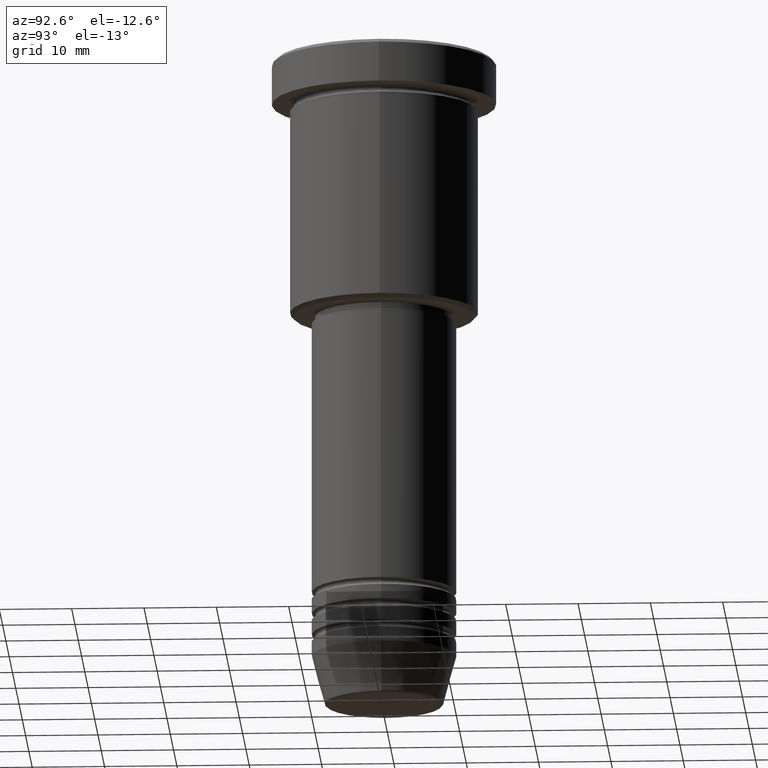
[diagram: clean part render]
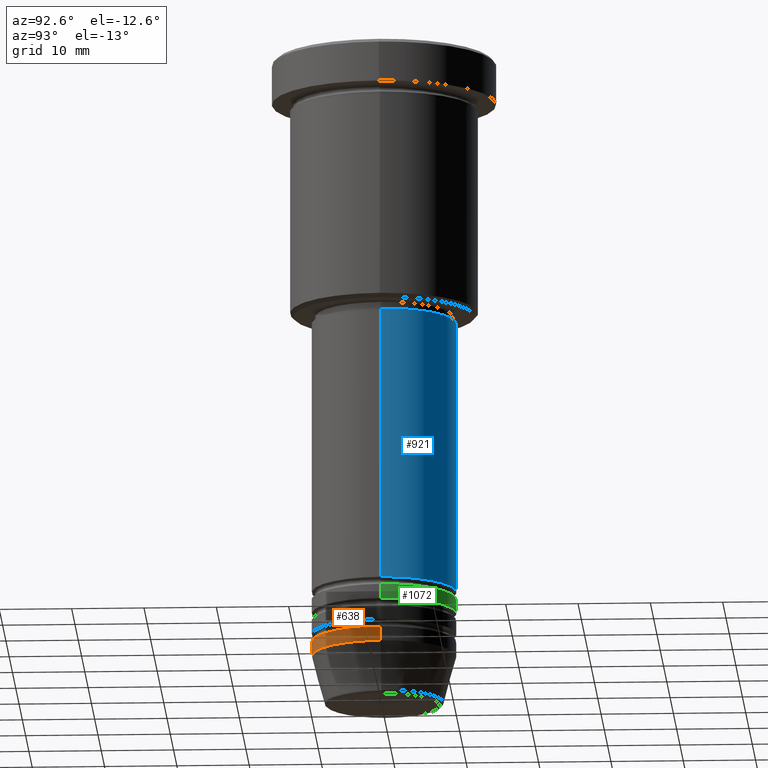
[diagram: same view with three faces highlighted in distinct colors, each labeled with its STEP entity id]
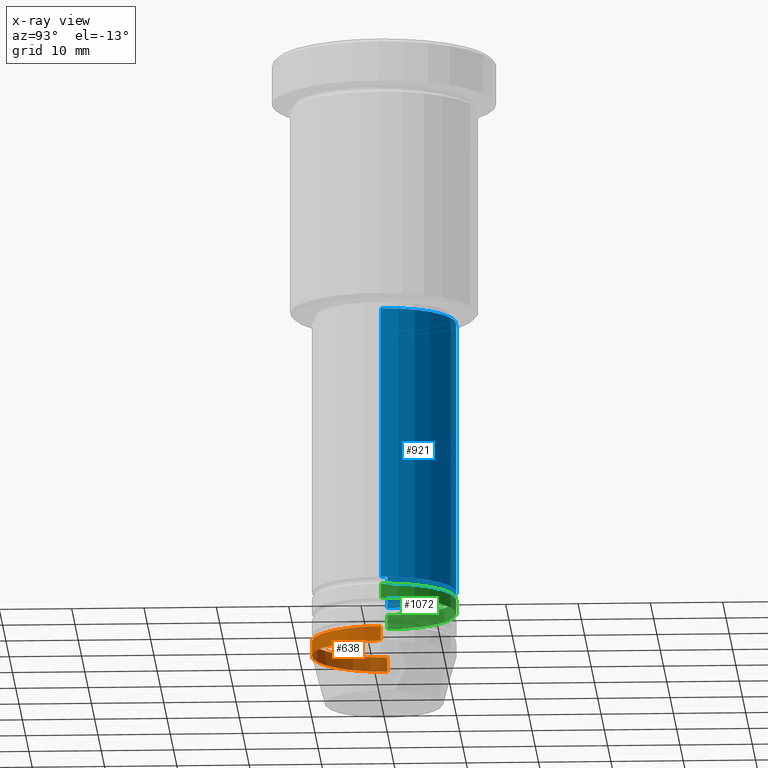
[diagram: x-ray of the same camera — body ghosted, the three highlighted faces saturated]
A machine part, auxiliary view with three faces highlighted in distinct colors.
The next image is the same camera in x-ray (body ghosted, the three faces saturated) — at least one of them is partly hidden behind the body in this view.
Their STEP definitions:

[orange] entity #638 — the highlighted cylindrical surface (partial cylindrical patch) has radius 10 mm, axis along (-0, -0, 1).
#55 = DIRECTION ( 'NONE',  ( 1.000000000000000000, 0.000000000000000000, 0.000000000000000000 ) ) ;
#114 = LINE ( 'NONE', #481, #285 ) ;
#173 = VECTOR ( 'NONE', #971, 1000.000000000000000 ) ;
#191 = CARTESIAN_POINT ( 'NONE',  ( 0.000000000000000000, 0.000000000000000000, 0.000000000000000000 ) ) ;
#232 = ORIENTED_EDGE ( 'NONE', *, *, #610, .T. ) ;
#258 = CARTESIAN_POINT ( 'NONE',  ( 10.00000000000000000, 0.000000000000000000, 0.000000000000000000 ) ) ;
#285 = VECTOR ( 'NONE', #1102, 1000.000000000000000 ) ;
#287 = CIRCLE ( 'NONE', #440, 10.00000000000000000 ) ;
#367 = FACE_OUTER_BOUND ( 'NONE', #922, .T. ) ;
#399 = VERTEX_POINT ( 'NONE', #1126 ) ;
#440 = AXIS2_PLACEMENT_3D ( 'NONE', #702, #599, #55 ) ;
#459 = DIRECTION ( 'NONE',  ( 1.000000000000000000, 0.000000000000000000, 0.000000000000000000 ) ) ;
#481 = CARTESIAN_POINT ( 'NONE',  ( -10.00000000000000000, 1.224646799147353256E-15, 0.000000000000000000 ) ) ;
#507 = VERTEX_POINT ( 'NONE', #887 ) ;
#512 = DIRECTION ( 'NONE',  ( 1.000000000000000000, 0.000000000000000000, 0.000000000000000000 ) ) ;
#557 = CARTESIAN_POINT ( 'NONE',  ( 0.000000000000000000, 0.000000000000000000, -83.99999999999998579 ) ) ;
#583 = EDGE_CURVE ( 'NONE', #635, #507, #114, .T. ) ;
#599 = DIRECTION ( 'NONE',  ( -0.000000000000000000, -0.000000000000000000, 1.000000000000000000 ) ) ;
#602 = AXIS2_PLACEMENT_3D ( 'NONE', #191, #614, #512 ) ;
#610 = EDGE_CURVE ( 'NONE', #635, #697, #1120, .T. ) ;
#611 = LINE ( 'NONE', #258, #173 ) ;
#614 = DIRECTION ( 'NONE',  ( -0.000000000000000000, -0.000000000000000000, 1.000000000000000000 ) ) ;
#635 = VERTEX_POINT ( 'NONE', #1181 ) ;
#638 = ADVANCED_FACE ( 'NONE', ( #367 ), #651, .T. ) ;
#651 = CYLINDRICAL_SURFACE ( 'NONE', #602, 10.00000000000000000 ) ;
#688 = EDGE_CURVE ( 'NONE', #697, #399, #611, .T. ) ;
#697 = VERTEX_POINT ( 'NONE', #900 ) ;
#701 = ORIENTED_EDGE ( 'NONE', *, *, #1036, .F. ) ;
#702 = CARTESIAN_POINT ( 'NONE',  ( 0.000000000000000000, 0.000000000000000000, -81.99999999999998579 ) ) ;
#738 = ORIENTED_EDGE ( 'NONE', *, *, #688, .T. ) ;
#887 = CARTESIAN_POINT ( 'NONE',  ( -10.00000000000000000, 1.224646799147353256E-15, -81.99999999999998579 ) ) ;
#900 = CARTESIAN_POINT ( 'NONE',  ( 10.00000000000000000, 0.000000000000000000, -83.99999999999998579 ) ) ;
#922 = EDGE_LOOP ( 'NONE', ( #989, #232, #738, #701 ) ) ;
#971 = DIRECTION ( 'NONE',  ( -0.000000000000000000, -0.000000000000000000, 1.000000000000000000 ) ) ;
#989 = ORIENTED_EDGE ( 'NONE', *, *, #583, .F. ) ;
#996 = AXIS2_PLACEMENT_3D ( 'NONE', #557, #1007, #459 ) ;
#1007 = DIRECTION ( 'NONE',  ( -0.000000000000000000, -0.000000000000000000, 1.000000000000000000 ) ) ;
#1036 = EDGE_CURVE ( 'NONE', #507, #399, #287, .T. ) ;
#1102 = DIRECTION ( 'NONE',  ( -0.000000000000000000, -0.000000000000000000, 1.000000000000000000 ) ) ;
#1120 = CIRCLE ( 'NONE', #996, 10.00000000000000000 ) ;
#1126 = CARTESIAN_POINT ( 'NONE',  ( 10.00000000000000000, 0.000000000000000000, -81.99999999999998579 ) ) ;
#1181 = CARTESIAN_POINT ( 'NONE',  ( -10.00000000000000000, 1.224646799147353256E-15, -83.99999999999998579 ) ) ;

[blue] entity #921 — the highlighted cylindrical surface (partial cylindrical patch) has radius 10 mm, axis along (-0, -0, 1).
#1 = CARTESIAN_POINT ( 'NONE',  ( -10.00000000000000000, 1.224646799147353256E-15, -36.99999999999996447 ) ) ;
#60 = VERTEX_POINT ( 'NONE', #1 ) ;
#100 = CARTESIAN_POINT ( 'NONE',  ( 0.000000000000000000, 0.000000000000000000, 0.000000000000000000 ) ) ;
#182 = DIRECTION ( 'NONE',  ( -0.000000000000000000, -0.000000000000000000, 1.000000000000000000 ) ) ;
#190 = ORIENTED_EDGE ( 'NONE', *, *, #546, .T. ) ;
#222 = CARTESIAN_POINT ( 'NONE',  ( -10.00000000000000000, 1.224646799147353256E-15, 0.000000000000000000 ) ) ;
#225 = FACE_OUTER_BOUND ( 'NONE', #915, .T. ) ;
#262 = ORIENTED_EDGE ( 'NONE', *, *, #919, .F. ) ;
#273 = AXIS2_PLACEMENT_3D ( 'NONE', #100, #748, #492 ) ;
#338 = CARTESIAN_POINT ( 'NONE',  ( 10.00000000000000000, 0.000000000000000000, 0.000000000000000000 ) ) ;
#373 = CARTESIAN_POINT ( 'NONE',  ( -10.00000000000000000, 1.224646799147353256E-15, -74.99999999999997158 ) ) ;
#391 = CARTESIAN_POINT ( 'NONE',  ( 0.000000000000000000, 0.000000000000000000, -36.99999999999996447 ) ) ;
#427 = VERTEX_POINT ( 'NONE', #373 ) ;
#429 = CARTESIAN_POINT ( 'NONE',  ( 10.00000000000000000, 0.000000000000000000, -74.99999999999997158 ) ) ;
#436 = DIRECTION ( 'NONE',  ( -0.000000000000000000, -0.000000000000000000, 1.000000000000000000 ) ) ;
#461 = EDGE_CURVE ( 'NONE', #1044, #427, #493, .T. ) ;
#492 = DIRECTION ( 'NONE',  ( 1.000000000000000000, 0.000000000000000000, 0.000000000000000000 ) ) ;
#493 = CIRCLE ( 'NONE', #676, 10.00000000000000000 ) ;
#546 = EDGE_CURVE ( 'NONE', #427, #60, #1048, .T. ) ;
#620 = VECTOR ( 'NONE', #946, 1000.000000000000000 ) ;
#676 = AXIS2_PLACEMENT_3D ( 'NONE', #1080, #436, #810 ) ;
#680 = DIRECTION ( 'NONE',  ( -0.000000000000000000, -0.000000000000000000, 1.000000000000000000 ) ) ;
#696 = VECTOR ( 'NONE', #182, 1000.000000000000000 ) ;
#735 = CARTESIAN_POINT ( 'NONE',  ( 10.00000000000000000, 0.000000000000000000, -36.99999999999996447 ) ) ;
#748 = DIRECTION ( 'NONE',  ( -0.000000000000000000, -0.000000000000000000, 1.000000000000000000 ) ) ;
#794 = VERTEX_POINT ( 'NONE', #735 ) ;
#801 = LINE ( 'NONE', #338, #696 ) ;
#810 = DIRECTION ( 'NONE',  ( 1.000000000000000000, 0.000000000000000000, 0.000000000000000000 ) ) ;
#915 = EDGE_LOOP ( 'NONE', ( #979, #190, #262, #955 ) ) ;
#919 = EDGE_CURVE ( 'NONE', #794, #60, #1122, .T. ) ;
#921 = ADVANCED_FACE ( 'NONE', ( #225 ), #1045, .T. ) ;
#940 = DIRECTION ( 'NONE',  ( 1.000000000000000000, 0.000000000000000000, 0.000000000000000000 ) ) ;
#946 = DIRECTION ( 'NONE',  ( -0.000000000000000000, -0.000000000000000000, 1.000000000000000000 ) ) ;
#955 = ORIENTED_EDGE ( 'NONE', *, *, #1085, .F. ) ;
#979 = ORIENTED_EDGE ( 'NONE', *, *, #461, .T. ) ;
#1044 = VERTEX_POINT ( 'NONE', #429 ) ;
#1045 = CYLINDRICAL_SURFACE ( 'NONE', #273, 10.00000000000000000 ) ;
#1048 = LINE ( 'NONE', #222, #620 ) ;
#1080 = CARTESIAN_POINT ( 'NONE',  ( 0.000000000000000000, 0.000000000000000000, -74.99999999999997158 ) ) ;
#1085 = EDGE_CURVE ( 'NONE', #1044, #794, #801, .T. ) ;
#1105 = AXIS2_PLACEMENT_3D ( 'NONE', #391, #680, #940 ) ;
#1122 = CIRCLE ( 'NONE', #1105, 10.00000000000000000 ) ;

[green] entity #1072 — the highlighted cylindrical surface (partial cylindrical patch) has radius 10 mm, axis along (-0, -0, 1).
#15 = EDGE_CURVE ( 'NONE', #1021, #447, #575, .T. ) ;
#149 = CARTESIAN_POINT ( 'NONE',  ( 0.000000000000000000, 0.000000000000000000, -77.99999999999997158 ) ) ;
#177 = EDGE_CURVE ( 'NONE', #447, #315, #821, .T. ) ;
#214 = EDGE_CURVE ( 'NONE', #1021, #953, #270, .T. ) ;
#241 = DIRECTION ( 'NONE',  ( 1.000000000000000000, 0.000000000000000000, 0.000000000000000000 ) ) ;
#249 = CYLINDRICAL_SURFACE ( 'NONE', #384, 10.00000000000000000 ) ;
#270 = LINE ( 'NONE', #511, #719 ) ;
#315 = VERTEX_POINT ( 'NONE', #776 ) ;
#331 = CARTESIAN_POINT ( 'NONE',  ( 0.000000000000000000, 0.000000000000000000, 0.000000000000000000 ) ) ;
#341 = EDGE_CURVE ( 'NONE', #953, #315, #1014, .T. ) ;
#347 = DIRECTION ( 'NONE',  ( -0.000000000000000000, -0.000000000000000000, 1.000000000000000000 ) ) ;
#384 = AXIS2_PLACEMENT_3D ( 'NONE', #331, #1065, #241 ) ;
#409 = DIRECTION ( 'NONE',  ( -0.000000000000000000, -0.000000000000000000, 1.000000000000000000 ) ) ;
#414 = ORIENTED_EDGE ( 'NONE', *, *, #177, .T. ) ;
#447 = VERTEX_POINT ( 'NONE', #905 ) ;
#495 = CARTESIAN_POINT ( 'NONE',  ( 0.000000000000000000, 0.000000000000000000, -75.99999999999997158 ) ) ;
#511 = CARTESIAN_POINT ( 'NONE',  ( 10.00000000000000000, 0.000000000000000000, 0.000000000000000000 ) ) ;
#522 = DIRECTION ( 'NONE',  ( 1.000000000000000000, 0.000000000000000000, 0.000000000000000000 ) ) ;
#534 = CARTESIAN_POINT ( 'NONE',  ( 10.00000000000000000, 0.000000000000000000, -75.99999999999997158 ) ) ;
#542 = ORIENTED_EDGE ( 'NONE', *, *, #341, .F. ) ;
#560 = AXIS2_PLACEMENT_3D ( 'NONE', #149, #970, #522 ) ;
#575 = CIRCLE ( 'NONE', #560, 10.00000000000000000 ) ;
#596 = VECTOR ( 'NONE', #788, 1000.000000000000000 ) ;
#601 = CARTESIAN_POINT ( 'NONE',  ( -10.00000000000000000, 1.224646799147353256E-15, 0.000000000000000000 ) ) ;
#613 = CARTESIAN_POINT ( 'NONE',  ( 10.00000000000000000, 0.000000000000000000, -77.99999999999997158 ) ) ;
#699 = FACE_OUTER_BOUND ( 'NONE', #805, .T. ) ;
#719 = VECTOR ( 'NONE', #347, 1000.000000000000000 ) ;
#776 = CARTESIAN_POINT ( 'NONE',  ( -10.00000000000000000, 1.224646799147353256E-15, -75.99999999999997158 ) ) ;
#782 = ORIENTED_EDGE ( 'NONE', *, *, #214, .F. ) ;
#788 = DIRECTION ( 'NONE',  ( -0.000000000000000000, -0.000000000000000000, 1.000000000000000000 ) ) ;
#805 = EDGE_LOOP ( 'NONE', ( #1011, #414, #542, #782 ) ) ;
#821 = LINE ( 'NONE', #601, #596 ) ;
#874 = DIRECTION ( 'NONE',  ( 1.000000000000000000, 0.000000000000000000, 0.000000000000000000 ) ) ;
#905 = CARTESIAN_POINT ( 'NONE',  ( -10.00000000000000000, 1.224646799147353256E-15, -77.99999999999997158 ) ) ;
#953 = VERTEX_POINT ( 'NONE', #534 ) ;
#970 = DIRECTION ( 'NONE',  ( -0.000000000000000000, -0.000000000000000000, 1.000000000000000000 ) ) ;
#1011 = ORIENTED_EDGE ( 'NONE', *, *, #15, .T. ) ;
#1014 = CIRCLE ( 'NONE', #1058, 10.00000000000000000 ) ;
#1021 = VERTEX_POINT ( 'NONE', #613 ) ;
#1058 = AXIS2_PLACEMENT_3D ( 'NONE', #495, #409, #874 ) ;
#1065 = DIRECTION ( 'NONE',  ( -0.000000000000000000, -0.000000000000000000, 1.000000000000000000 ) ) ;
#1072 = ADVANCED_FACE ( 'NONE', ( #699 ), #249, .T. ) ;